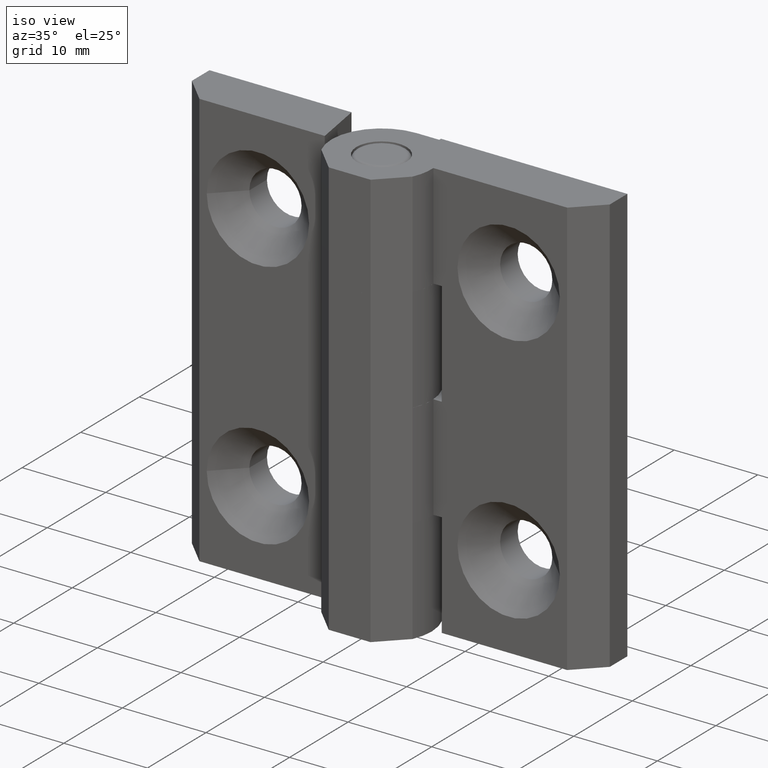
[diagram: clean part render]
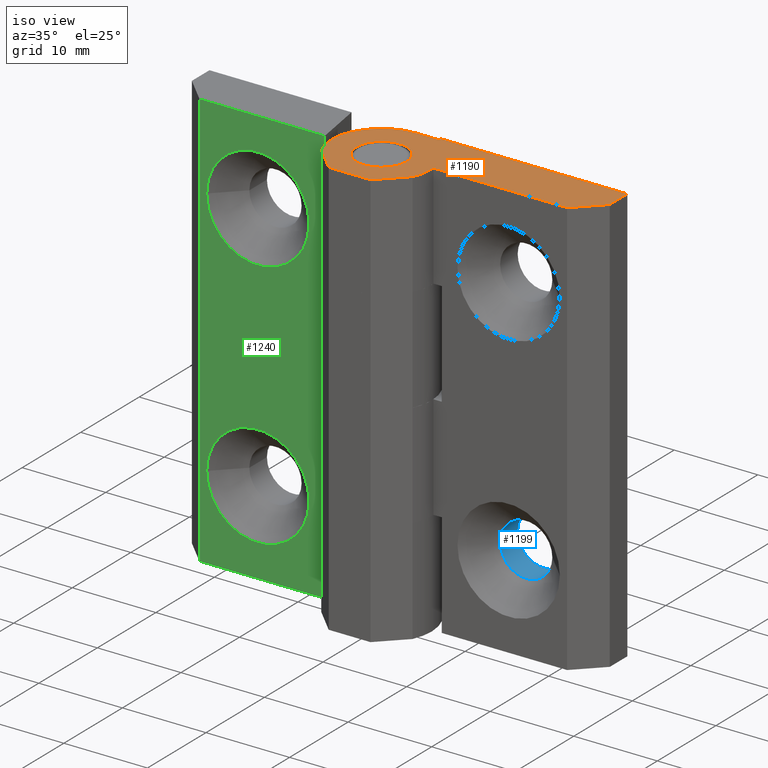
[diagram: same view with three faces highlighted in distinct colors, each labeled with its STEP entity id]
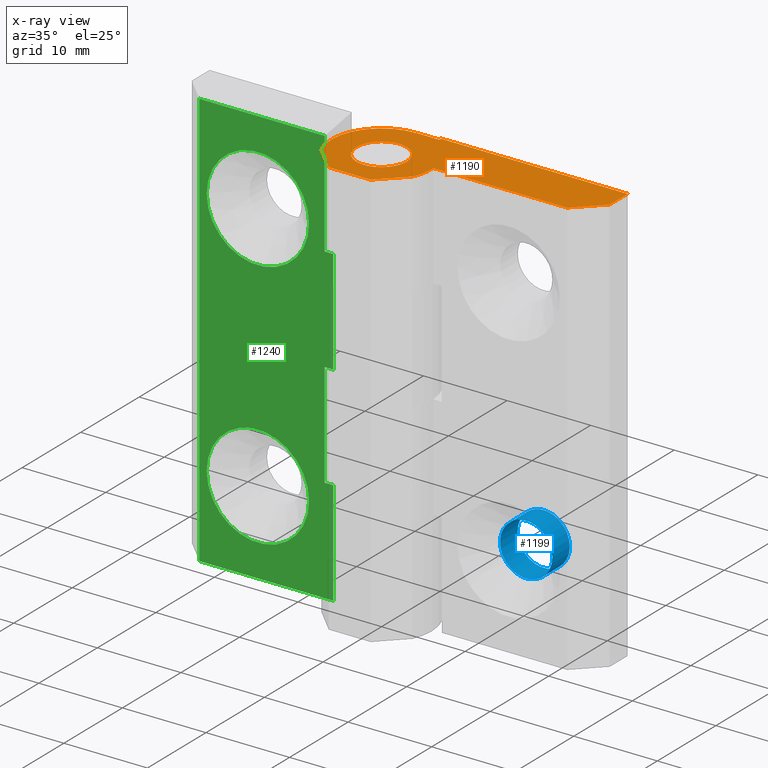
[diagram: x-ray of the same camera — body ghosted, the three highlighted faces saturated]
A machine part, iso view with three faces highlighted in distinct colors.
The next image is the same camera in x-ray (body ghosted, the three faces saturated) — at least one of them is partly hidden behind the body in this view.
Their STEP definitions:

[orange] entity #1190 — the highlighted planar face has unit normal (0, 0, 1).
#58=FACE_BOUND('',#203,.T.);
#89=CIRCLE('',#1262,6.);
#90=CIRCLE('',#1263,6.);
#91=CIRCLE('',#1264,3.);
#135=FACE_OUTER_BOUND('',#202,.T.);
#202=EDGE_LOOP('',(#840,#841,#842,#843,#844,#845,#846,#847,#848,#849,#850));
#203=EDGE_LOOP('',(#851));
#304=LINE('',#1744,#426);
#309=LINE('',#1753,#431);
#312=LINE('',#1759,#434);
#314=LINE('',#1765,#436);
#315=LINE('',#1767,#437);
#316=LINE('',#1769,#438);
#317=LINE('',#1771,#439);
#318=LINE('',#1773,#440);
#319=LINE('',#1775,#441);
#426=VECTOR('',#1386,4.17809040433803);
#431=VECTOR('',#1395,5.);
#434=VECTOR('',#1400,4.17809040433802);
#436=VECTOR('',#1406,16.0075046933685);
#437=VECTOR('',#1407,4.24264068711929);
#438=VECTOR('',#1408,3.);
#439=VECTOR('',#1409,22.3);
#440=VECTOR('',#1410,0.299999999999987);
#441=VECTOR('',#1411,2.69999999999999);
#548=VERTEX_POINT('',#1741);
#549=VERTEX_POINT('',#1743);
#551=VERTEX_POINT('',#1752);
#553=VERTEX_POINT('',#1758);
#554=VERTEX_POINT('',#1762);
#555=VERTEX_POINT('',#1764);
#556=VERTEX_POINT('',#1766);
#557=VERTEX_POINT('',#1768);
#558=VERTEX_POINT('',#1770);
#559=VERTEX_POINT('',#1772);
#560=VERTEX_POINT('',#1774);
#561=VERTEX_POINT('',#1777);
#664=EDGE_CURVE('',#549,#548,#304,.T.);
#669=EDGE_CURVE('',#551,#549,#309,.T.);
#672=EDGE_CURVE('',#553,#551,#312,.T.);
#674=EDGE_CURVE('',#548,#554,#89,.T.);
#675=EDGE_CURVE('',#554,#555,#314,.T.);
#676=EDGE_CURVE('',#555,#556,#315,.T.);
#677=EDGE_CURVE('',#556,#557,#316,.T.);
#678=EDGE_CURVE('',#557,#558,#317,.T.);
#679=EDGE_CURVE('',#558,#559,#318,.T.);
#680=EDGE_CURVE('',#559,#560,#319,.T.);
#681=EDGE_CURVE('',#560,#553,#90,.T.);
#682=EDGE_CURVE('',#561,#561,#91,.T.);
#840=ORIENTED_EDGE('',*,*,#672,.T.);
#841=ORIENTED_EDGE('',*,*,#669,.T.);
#842=ORIENTED_EDGE('',*,*,#664,.T.);
#843=ORIENTED_EDGE('',*,*,#674,.T.);
#844=ORIENTED_EDGE('',*,*,#675,.T.);
#845=ORIENTED_EDGE('',*,*,#676,.T.);
#846=ORIENTED_EDGE('',*,*,#677,.T.);
#847=ORIENTED_EDGE('',*,*,#678,.T.);
#848=ORIENTED_EDGE('',*,*,#679,.T.);
#849=ORIENTED_EDGE('',*,*,#680,.T.);
#850=ORIENTED_EDGE('',*,*,#681,.T.);
#851=ORIENTED_EDGE('',*,*,#682,.T.);
#1146=PLANE('',#1261);
#1190=ADVANCED_FACE('',(#135,#58),#1146,.T.);
#1261=AXIS2_PLACEMENT_3D('',#1761,#1402,#1403);
#1262=AXIS2_PLACEMENT_3D('',#1763,#1404,#1405);
#1263=AXIS2_PLACEMENT_3D('',#1776,#1412,#1413);
#1264=AXIS2_PLACEMENT_3D('',#1778,#1414,#1415);
#1386=DIRECTION('',(0.707106781186547,0.707106781186548,0.));
#1395=DIRECTION('',(1.,0.,0.));
#1400=DIRECTION('',(0.707106781186548,-0.707106781186547,0.));
#1402=DIRECTION('center_axis',(0.,0.,1.));
#1403=DIRECTION('ref_axis',(1.,0.,0.));
#1404=DIRECTION('center_axis',(0.,0.,1.));
#1405=DIRECTION('ref_axis',(0.,-1.,0.));
#1406=DIRECTION('',(1.,1.14871550548236E-16,0.));
#1407=DIRECTION('',(0.707106781186548,0.707106781186547,0.));
#1408=DIRECTION('',(-1.48029736616688E-15,1.,0.));
#1409=DIRECTION('',(-1.,9.95715717152607E-17,0.));
#1410=DIRECTION('',(0.,-1.,0.));
#1411=DIRECTION('',(-1.,0.,0.));
#1412=DIRECTION('center_axis',(0.,0.,1.));
#1413=DIRECTION('ref_axis',(0.,-1.,0.));
#1414=DIRECTION('center_axis',(0.,0.,-1.));
#1415=DIRECTION('ref_axis',(-1.,0.,0.));
#1741=CARTESIAN_POINT('',(5.45435605731786,-2.49999999999999,25.));
#1743=CARTESIAN_POINT('',(2.5,-5.45435605731786,25.));
#1744=CARTESIAN_POINT('',(6.25660443249876,-1.6977516248191,25.));
#1752=CARTESIAN_POINT('',(-2.5,-5.45435605731786,25.));
#1753=CARTESIAN_POINT('',(3.65423938864916,-5.45435605731786,25.));
#1758=CARTESIAN_POINT('',(-5.45435605731786,-2.5,25.));
#1759=CARTESIAN_POINT('',(-2.82954307250853,-5.12481298480933,25.));
#1761=CARTESIAN_POINT('Origin',(9.80847877729832,2.26358289537886,25.));
#1762=CARTESIAN_POINT('',(5.99249530663146,0.299999999999985,25.));
#1763=CARTESIAN_POINT('Origin',(0.,0.,25.));
#1764=CARTESIAN_POINT('',(22.,0.299999999999987,25.));
#1765=CARTESIAN_POINT('',(22.,0.299999999999987,25.));
#1766=CARTESIAN_POINT('',(25.,3.29999999999999,25.));
#1767=CARTESIAN_POINT('',(25.,3.29999999999999,25.));
#1768=CARTESIAN_POINT('',(25.,6.29999999999999,25.));
#1769=CARTESIAN_POINT('',(25.,6.29999999999999,25.));
#1770=CARTESIAN_POINT('',(2.69999999999999,6.29999999999999,25.));
#1771=CARTESIAN_POINT('',(2.69999999999999,6.29999999999999,25.));
#1772=CARTESIAN_POINT('',(2.69999999999999,6.,25.));
#1773=CARTESIAN_POINT('',(2.69999999999999,6.,25.));
#1774=CARTESIAN_POINT('',(0.,6.,25.));
#1775=CARTESIAN_POINT('',(0.,6.,25.));
#1776=CARTESIAN_POINT('Origin',(0.,0.,25.));
#1777=CARTESIAN_POINT('',(3.,3.67394039744206E-16,25.));
#1778=CARTESIAN_POINT('Origin',(0.,0.,25.));

[blue] entity #1199 — the highlighted cylindrical surface (bore or boss wall) has radius 3.125 mm, axis along (0, -1, 0).
#45=CYLINDRICAL_SURFACE('',#1286,3.125);
#64=FACE_BOUND('',#218,.T.);
#104=CIRCLE('',#1285,3.125);
#105=CIRCLE('',#1287,3.125);
#144=FACE_OUTER_BOUND('',#217,.T.);
#217=EDGE_LOOP('',(#892));
#218=EDGE_LOOP('',(#893));
#582=VERTEX_POINT('',#1832);
#583=VERTEX_POINT('',#1835);
#708=EDGE_CURVE('',#582,#582,#104,.T.);
#709=EDGE_CURVE('',#583,#583,#105,.T.);
#892=ORIENTED_EDGE('',*,*,#709,.F.);
#893=ORIENTED_EDGE('',*,*,#708,.T.);
#1199=ADVANCED_FACE('',(#144,#64),#45,.F.);
#1285=AXIS2_PLACEMENT_3D('',#1833,#1469,#1470);
#1286=AXIS2_PLACEMENT_3D('',#1834,#1471,#1472);
#1287=AXIS2_PLACEMENT_3D('',#1836,#1473,#1474);
#1469=DIRECTION('center_axis',(1.14871550548236E-16,-1.,0.));
#1470=DIRECTION('ref_axis',(1.,1.14871550548236E-16,0.));
#1471=DIRECTION('center_axis',(1.14871550548236E-16,-1.,0.));
#1472=DIRECTION('ref_axis',(1.,1.14871550548236E-16,0.));
#1473=DIRECTION('center_axis',(-9.95715717152607E-17,-1.,0.));
#1474=DIRECTION('ref_axis',(1.,1.14871550548236E-16,0.));
#1832=CARTESIAN_POINT('',(18.125,3.29999999999999,-15.));
#1833=CARTESIAN_POINT('Origin',(15.,3.29999999999998,-15.));
#1834=CARTESIAN_POINT('Origin',(15.,60.4023294057726,-15.));
#1835=CARTESIAN_POINT('',(11.875,6.29999999999999,-15.));
#1836=CARTESIAN_POINT('Origin',(15.,6.29999999999999,-15.));

[green] entity #1240 — the highlighted planar face has unit normal (0, -1, -0).
#82=FACE_BOUND('',#277,.T.);
#83=FACE_BOUND('',#278,.T.);
#117=CIRCLE('',#1328,6.125);
#120=CIRCLE('',#1333,6.125);
#185=FACE_OUTER_BOUND('',#276,.T.);
#276=EDGE_LOOP('',(#1103,#1104,#1105,#1106,#1107,#1108,#1109,#1110,#1111,
#1112));
#277=EDGE_LOOP('',(#1113));
#278=EDGE_LOOP('',(#1114));
#375=LINE('',#1932,#497);
#377=LINE('',#1942,#499);
#382=LINE('',#1956,#504);
#384=LINE('',#1966,#506);
#392=LINE('',#1999,#514);
#396=LINE('',#2008,#518);
#405=LINE('',#2023,#527);
#408=LINE('',#2030,#530);
#411=LINE('',#2041,#533);
#412=LINE('',#2042,#534);
#497=VECTOR('',#1567,12.5);
#499=VECTOR('',#1579,1.00750469336853);
#504=VECTOR('',#1590,12.5);
#506=VECTOR('',#1602,16.0075046933685);
#514=VECTOR('',#1634,12.5);
#518=VECTOR('',#1640,12.5);
#527=VECTOR('',#1653,1.00750469336853);
#530=VECTOR('',#1660,1.00750469336853);
#533=VECTOR('',#1675,15.);
#534=VECTOR('',#1676,50.);
#610=VERTEX_POINT('',#1929);
#611=VERTEX_POINT('',#1931);
#614=VERTEX_POINT('',#1941);
#619=VERTEX_POINT('',#1953);
#620=VERTEX_POINT('',#1955);
#623=VERTEX_POINT('',#1965);
#629=VERTEX_POINT('',#1979);
#632=VERTEX_POINT('',#1987);
#636=VERTEX_POINT('',#1996);
#638=VERTEX_POINT('',#2002);
#640=VERTEX_POINT('',#2006);
#648=VERTEX_POINT('',#2040);
#754=EDGE_CURVE('',#611,#610,#375,.T.);
#759=EDGE_CURVE('',#614,#611,#377,.T.);
#766=EDGE_CURVE('',#620,#619,#382,.T.);
#771=EDGE_CURVE('',#620,#623,#384,.T.);
#778=EDGE_CURVE('',#629,#629,#117,.T.);
#781=EDGE_CURVE('',#632,#632,#120,.T.);
#786=EDGE_CURVE('',#636,#614,#392,.T.);
#790=EDGE_CURVE('',#638,#640,#396,.T.);
#799=EDGE_CURVE('',#610,#638,#405,.T.);
#803=EDGE_CURVE('',#619,#636,#408,.T.);
#807=EDGE_CURVE('',#648,#640,#411,.T.);
#808=EDGE_CURVE('',#648,#623,#412,.T.);
#1103=ORIENTED_EDGE('',*,*,#799,.T.);
#1104=ORIENTED_EDGE('',*,*,#790,.T.);
#1105=ORIENTED_EDGE('',*,*,#807,.F.);
#1106=ORIENTED_EDGE('',*,*,#808,.T.);
#1107=ORIENTED_EDGE('',*,*,#771,.F.);
#1108=ORIENTED_EDGE('',*,*,#766,.T.);
#1109=ORIENTED_EDGE('',*,*,#803,.T.);
#1110=ORIENTED_EDGE('',*,*,#786,.T.);
#1111=ORIENTED_EDGE('',*,*,#759,.T.);
#1112=ORIENTED_EDGE('',*,*,#754,.T.);
#1113=ORIENTED_EDGE('',*,*,#778,.T.);
#1114=ORIENTED_EDGE('',*,*,#781,.T.);
#1178=PLANE('',#1348);
#1240=ADVANCED_FACE('',(#185,#82,#83),#1178,.T.);
#1328=AXIS2_PLACEMENT_3D('',#1980,#1612,#1613);
#1333=AXIS2_PLACEMENT_3D('',#1988,#1622,#1623);
#1348=AXIS2_PLACEMENT_3D('',#2039,#1673,#1674);
#1567=DIRECTION('',(0.,0.,-1.));
#1579=DIRECTION('',(-1.,-1.14871550548236E-16,0.));
#1590=DIRECTION('',(0.,0.,-1.));
#1602=DIRECTION('',(1.,1.14871550548236E-16,0.));
#1612=DIRECTION('center_axis',(-1.14871550548236E-16,1.,0.));
#1613=DIRECTION('ref_axis',(1.,1.14871550548236E-16,0.));
#1622=DIRECTION('center_axis',(-1.14871550548236E-16,1.,0.));
#1623=DIRECTION('ref_axis',(1.,1.14871550548236E-16,0.));
#1634=DIRECTION('',(-4.44089209850063E-17,-5.10132161172178E-33,-1.));
#1640=DIRECTION('',(8.88178419700125E-17,1.02026432234436E-32,-1.));
#1653=DIRECTION('',(1.,1.14871550548236E-16,0.));
#1660=DIRECTION('',(1.,1.14871550548236E-16,0.));
#1673=DIRECTION('center_axis',(1.14871550548236E-16,-1.,0.));
#1674=DIRECTION('ref_axis',(1.,1.16573417585641E-16,0.));
#1675=DIRECTION('',(-1.,-1.14871550548236E-16,0.));
#1676=DIRECTION('',(0.,0.,1.));
#1929=CARTESIAN_POINT('',(5.99249530663146,0.299999999999985,-12.5));
#1931=CARTESIAN_POINT('',(5.99249530663146,0.299999999999985,0.));
#1932=CARTESIAN_POINT('',(5.99249530663146,0.299999999999985,0.));
#1941=CARTESIAN_POINT('',(6.99999999999998,0.299999999999985,0.));
#1942=CARTESIAN_POINT('',(-0.00375234668427115,0.299999999999984,0.));
#1953=CARTESIAN_POINT('',(5.99249530663146,0.299999999999985,12.5));
#1955=CARTESIAN_POINT('',(5.99249530663146,0.299999999999985,25.));
#1956=CARTESIAN_POINT('',(5.99249530663146,0.299999999999985,0.));
#1965=CARTESIAN_POINT('',(22.,0.299999999999987,25.));
#1966=CARTESIAN_POINT('',(22.,0.299999999999987,25.));
#1979=CARTESIAN_POINT('',(21.125,0.299999999999986,15.));
#1980=CARTESIAN_POINT('Origin',(15.,0.299999999999986,15.));
#1987=CARTESIAN_POINT('',(21.125,0.299999999999986,-15.));
#1988=CARTESIAN_POINT('Origin',(15.,0.299999999999986,-15.));
#1996=CARTESIAN_POINT('',(6.99999999999998,0.299999999999985,12.5));
#1999=CARTESIAN_POINT('',(6.99999999999999,0.299999999999985,-2.23710981599129E-17));
#2002=CARTESIAN_POINT('',(6.99999999999998,0.299999999999985,-12.5));
#2006=CARTESIAN_POINT('',(6.99999999999998,0.299999999999985,-25.));
#2008=CARTESIAN_POINT('',(6.99999999999998,0.299999999999985,-12.5));
#2023=CARTESIAN_POINT('',(6.49624765331572,0.299999999999985,-12.5));
#2030=CARTESIAN_POINT('',(6.49624765331572,0.299999999999985,12.5));
#2039=CARTESIAN_POINT('Origin',(5.99249530663146,0.299999999999985,0.));
#2040=CARTESIAN_POINT('',(22.,0.299999999999987,-25.));
#2041=CARTESIAN_POINT('',(22.,0.299999999999987,-25.));
#2042=CARTESIAN_POINT('',(22.,0.299999999999987,0.));